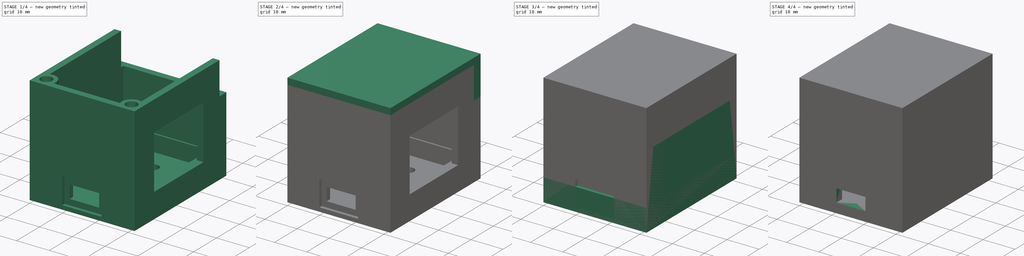
[diagram: build sequence overview — one tinted view per stage of 4, left to right]
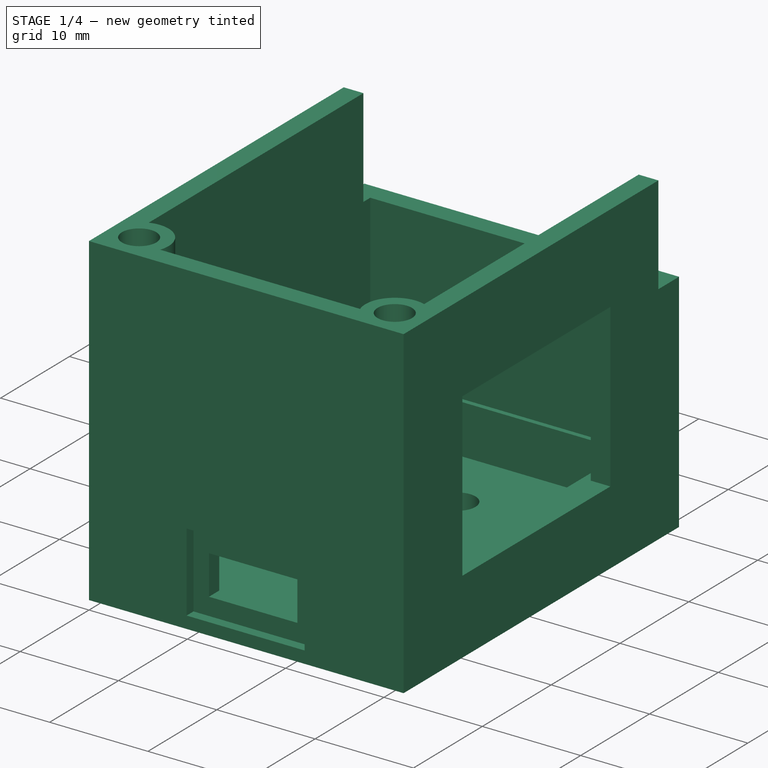
[diagram: stage 1 of 4 — iso view after this stage's code; geometry added in this stage tinted green]
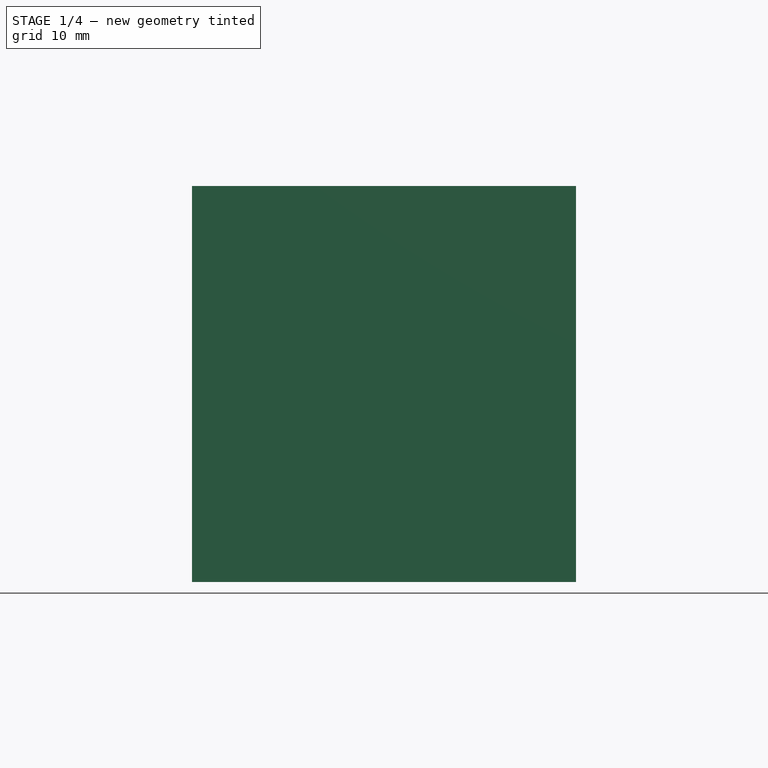
[diagram: stage 1 of 4 — front view after this stage's code; geometry added in this stage tinted green]
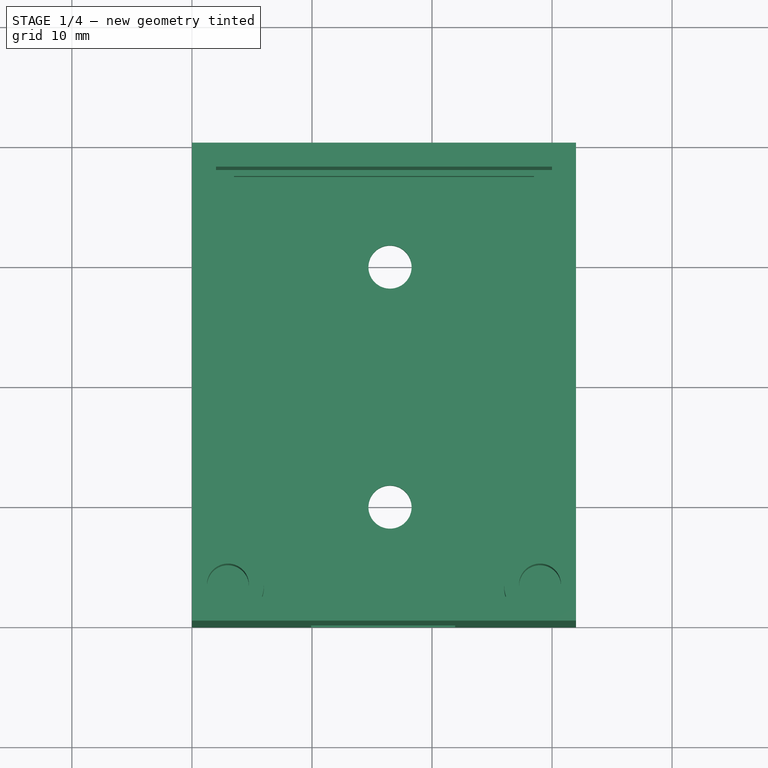
[diagram: stage 1 of 4 — top view after this stage's code; geometry added in this stage tinted green]
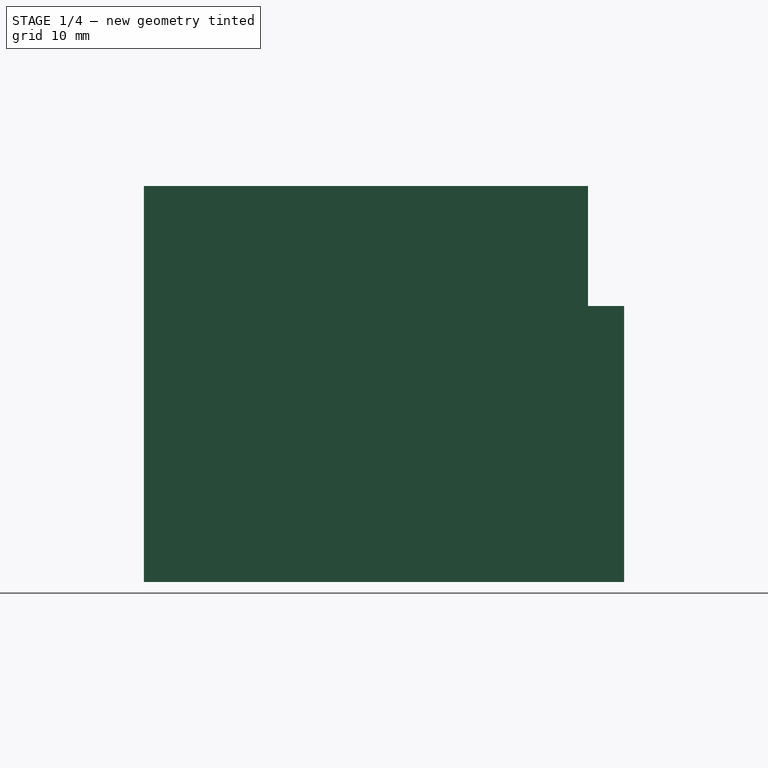
[diagram: stage 1 of 4 — right view after this stage's code; geometry added in this stage tinted green]
FCSTD DOCUMENT  (FreeCAD 0.16R6712 (Git))
Label: modulo_USB
License: All rights reserved
LicenseURL: http://en.wikipedia.org/wiki/All_rights_reserved
objects: Sketcher::SketchObject×12, PartDesign::Pocket×8, PartDesign::Pad×4, Part::Feature×3, Part::Box×1
note: 40 computed .brp shape members not serialized (recipe doc carries the construction recipe); baked Part::Feature solids carry a one-line shape summary decoded from their .brp

FEATURE [Part::Feature] Pad002001  label="Pad003"
  shape: bbox 32 x 40 x 33 mm, 32 faces (baked)
FEATURE [Sketcher::SketchObject] Sketch007
  ExternalGeometry = -> [Pad002001]
  Placement = pos=(0,0,33) rot=(0,0,1;0rad)
  Support = -> Pad002001 [Face31]
  sketch-geometry (2):
    g0: Circle CenterX=29 CenterY=3 CenterZ=0 NormalX=0 NormalY=0 NormalZ=1 Radius=1.75
    g1: Circle CenterX=3 CenterY=3 CenterZ=0 NormalX=0 NormalY=0 NormalZ=1 Radius=1.75
  constraints (4):
    c: Coincident(g0,g-4)
    c: Coincident(g1,g-3)
    c: Equal(g1,g0)
    c: Radius(g0) = 1.75
FEATURE [PartDesign::Pocket] Pocket001004
  Length = 8
  Sketch = -> Sketch007
  Type = 0
FEATURE [Sketcher::SketchObject] Sketch010
  ExternalGeometry = -> [Pocket001004]
  Placement = pos=(0,0,0) rot=(1,0,0;3.14159rad)
  Support = -> Pocket001004 [Face29]
  sketch-geometry (3):
    g0: LineSegment [constr] StartX=16.5 StartY=0 StartZ=0 EndX=16.5 EndY=-40 EndZ=0
    g1: Circle CenterX=16.5 CenterY=-10 CenterZ=0 NormalX=0 NormalY=0 NormalZ=1 Radius=1.8
    g2: Circle CenterX=16.5 CenterY=-30 CenterZ=0 NormalX=0 NormalY=0 NormalZ=1 Radius=1.8
  constraints (10):
    c: PointOnObject(g0,g-3)
    c: Vertical(g0)
    c: PointOnObject(g1,g0)
    c: PointOnObject(g2,g0)
    c: Radius(g2) = 1.8
    c: Equal(g2,g1)
    c: Distance(g1,g2) = 20
    c: Distance(g1,g0) = 10
    c: Distance(g0,g-3) = 15.5
    c: PointOnObject(g0,g-1)
FEATURE [PartDesign::Pocket] Pocket001006
  Length = 5
  Sketch = -> Sketch010
  Type = 0
FEATURE [Sketcher::SketchObject] Sketch011
  Placement = pos=(32,0,0) rot=(0.57735,0.57735,0.57735;2.0944rad)
  Support = -> Pocket001006 [Face32]
  sketch-geometry (4):
    g0: LineSegment StartX=8.52784 StartY=24.032 StartZ=0 EndX=30.0278 EndY=24.032 EndZ=0
    g1: LineSegment StartX=30.0278 StartY=24.032 StartZ=0 EndX=30.0278 EndY=7.53202 EndZ=0
    g2: LineSegment StartX=30.0278 StartY=7.53202 StartZ=0 EndX=8.52784 EndY=7.53202 EndZ=0
    g3: LineSegment StartX=8.52784 StartY=7.53202 StartZ=0 EndX=8.52784 EndY=24.032 EndZ=0
  constraints (10):
    c: Coincident(g0,g1)
    c: Coincident(g1,g2)
    c: Coincident(g2,g3)
    c: Coincident(g3,g0)
    c: Horizontal(g0)
    c: Horizontal(g2)
    c: Vertical(g1)
    c: Vertical(g3)
    c: DistanceX(g2,g2) = 21.5
    c: DistanceY(g3,g3) = 16.5
FEATURE [PartDesign::Pocket] Pocket001007
  Length = 5
  Sketch = -> Sketch011
  Type = 0
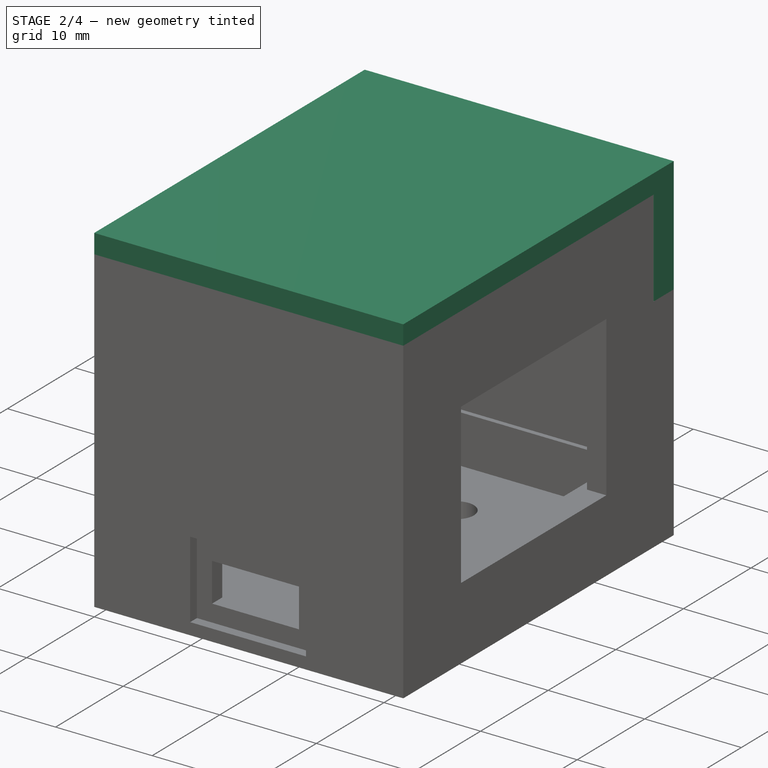
[diagram: stage 2 of 4 — iso view after this stage's code; geometry added in this stage tinted green]
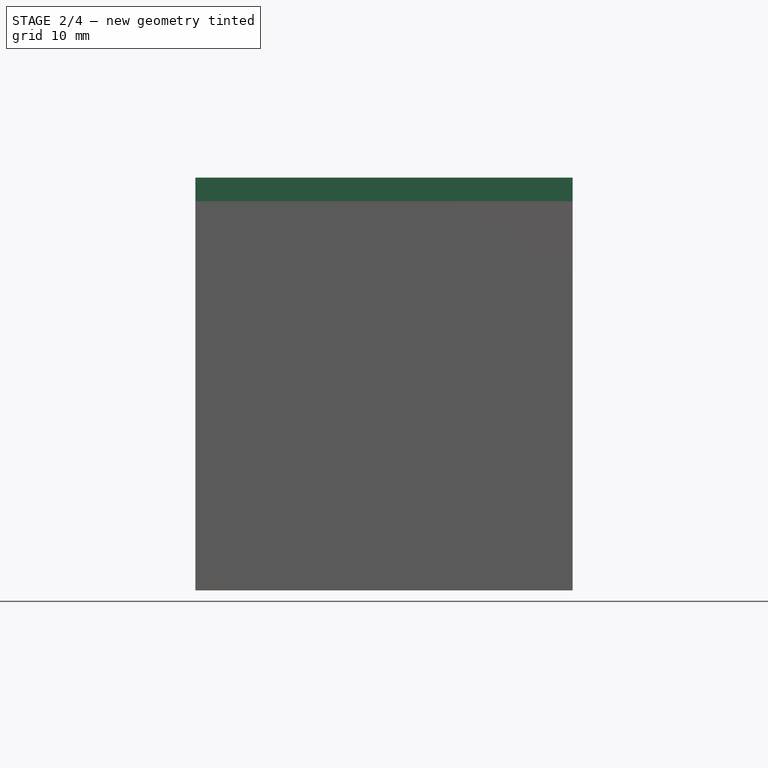
[diagram: stage 2 of 4 — front view after this stage's code; geometry added in this stage tinted green]
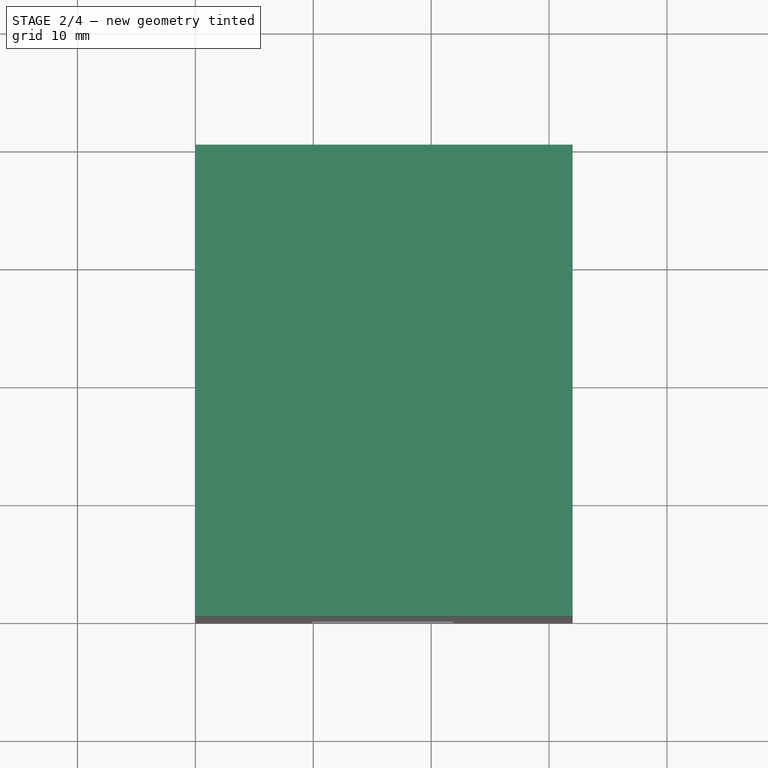
[diagram: stage 2 of 4 — top view after this stage's code; geometry added in this stage tinted green]
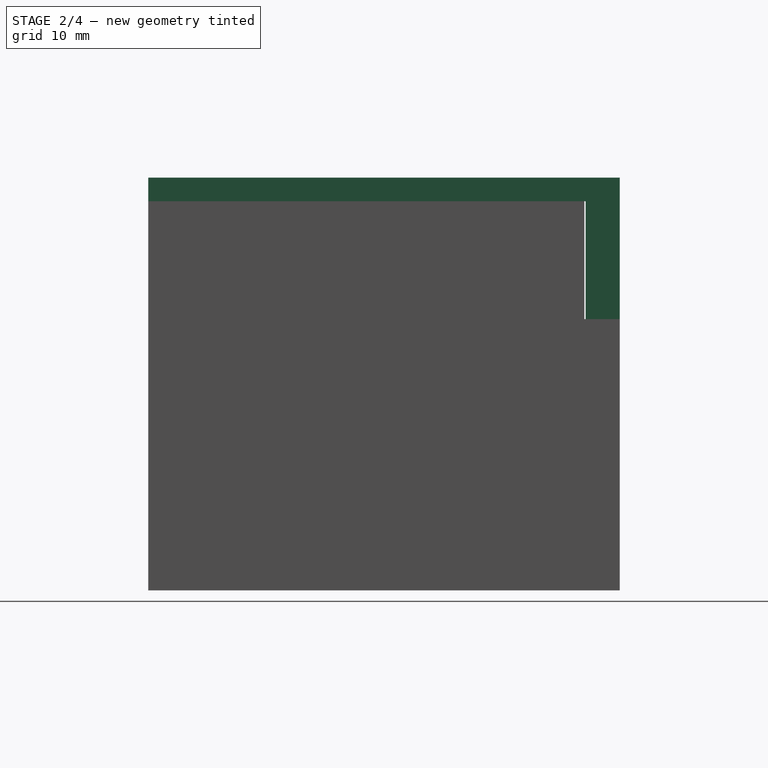
[diagram: stage 2 of 4 — right view after this stage's code; geometry added in this stage tinted green]
FEATURE [Part::Box] Box  label="Cubo"
  Height = 2
  Length = 32
  Placement = pos=(0,0,33) rot=(0,0,1;0rad)
  Width = 40
FEATURE [Sketcher::SketchObject] Sketch008
  ExternalGeometry = -> [Box]
  Placement = pos=(0,40,33) rot=(0,0.707107,0.707107;3.14159rad)
  Support = -> Box [Face4]
  sketch-geometry (8):
    g0: LineSegment StartX=-32 StartY=2 StartZ=0 EndX=-23.6734 EndY=2 EndZ=0
    g1: LineSegment StartX=-23.6734 StartY=2 StartZ=0 EndX=-23.6734 EndY=-10 EndZ=0
    g2: LineSegment StartX=-23.6734 StartY=-10 StartZ=0 EndX=-32 EndY=-10 EndZ=0
    g3: LineSegment StartX=-32 StartY=-10 StartZ=0 EndX=-32 EndY=2 EndZ=0
    g4: LineSegment StartX=0 StartY=2 StartZ=0 EndX=-7.67335 EndY=2 EndZ=0
    g5: LineSegment StartX=-7.67335 StartY=2 StartZ=0 EndX=-7.67335 EndY=-10 EndZ=0
    g6: LineSegment StartX=-7.67335 StartY=-10 StartZ=0 EndX=0 EndY=-10 EndZ=0
    g7: LineSegment StartX=0 StartY=-10 StartZ=0 EndX=0 EndY=2 EndZ=0
  constraints (21):
    c: Coincident(g0,g1)
    c: Coincident(g1,g2)
    c: Coincident(g2,g3)
    c: Coincident(g3,g0)
    c: Horizontal(g0)
    c: Horizontal(g2)
    c: Vertical(g1)
    c: Vertical(g3)
    c: Coincident(g4,g5)
    c: Coincident(g5,g6)
    c: Coincident(g6,g7)
    c: Coincident(g7,g4)
    c: Horizontal(g4)
    c: Horizontal(g6)
    c: Vertical(g5)
    c: Vertical(g7)
    c: Coincident(g4,g-3)
    c: Coincident(g0,g-3)
    c: Distance(g1,g5) = 16
    c: DistanceY(g3,g3) = 12
    c: Equal(g3,g7)
FEATURE [PartDesign::Pad] Pad002002
  Length = 2.9
  Length2 = 100
  Placement = pos=(0,0,33) rot=(0,0,1;0rad)
  Reversed = true
  Sketch = -> Sketch008
  Type = 0
FEATURE [Part::Feature] Pad002002001  label="Pad002003"
  shape: bbox 32 x 40 x 12 mm, 12 faces (baked)
FEATURE [Sketcher::SketchObject] Sketch009
  ExternalGeometry = -> [Pad002002001]
  Placement = pos=(0,0,35) rot=(0,0,1;0rad)
  Support = -> Pad002002001 [Face10]
  sketch-geometry (3):
    g0: Circle CenterX=29.064 CenterY=3.00447 CenterZ=0 NormalX=0 NormalY=0 NormalZ=1 Radius=1.7
    g1: Circle CenterX=2.93601 CenterY=3.00447 CenterZ=0 NormalX=0 NormalY=0 NormalZ=1 Radius=1.7
    g2: LineSegment [constr] StartX=0 StartY=3.00447 StartZ=0 EndX=30.764 EndY=3.00447 EndZ=0
  constraints (7):
    c: Equal(g1,g0)
    c: Radius(g0) = 1.7
    c: PointOnObject(g2,g-2)
    c: PointOnObject(g2,g0)
    c: Horizontal(g2)
    c: PointOnObject(g0,g2)
    c: PointOnObject(g1,g2)
FEATURE [PartDesign::Pocket] Pocket001005
  Length = 5
  Sketch = -> Sketch009
  Type = 0
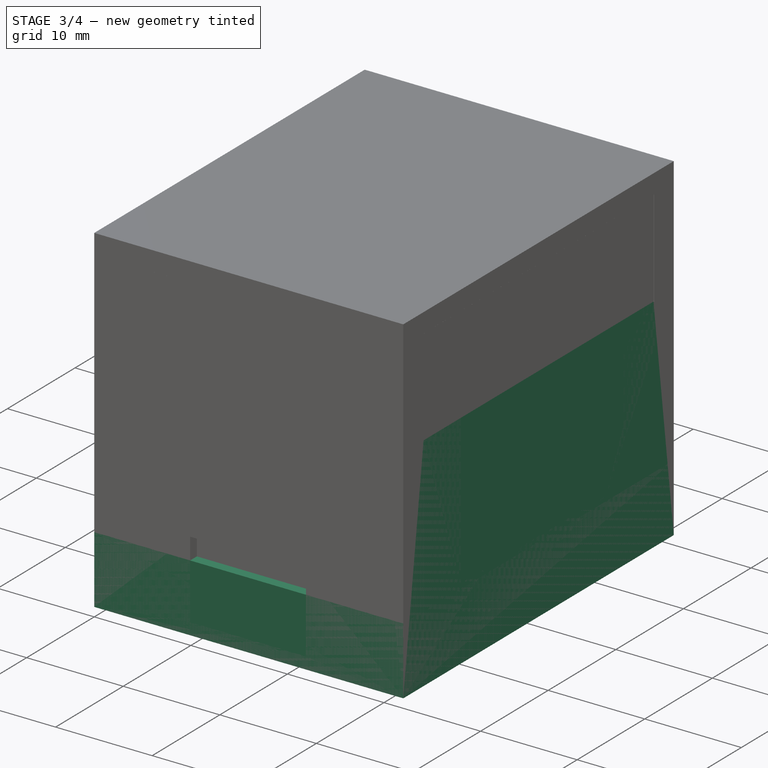
[diagram: stage 3 of 4 — iso view after this stage's code; geometry added in this stage tinted green]
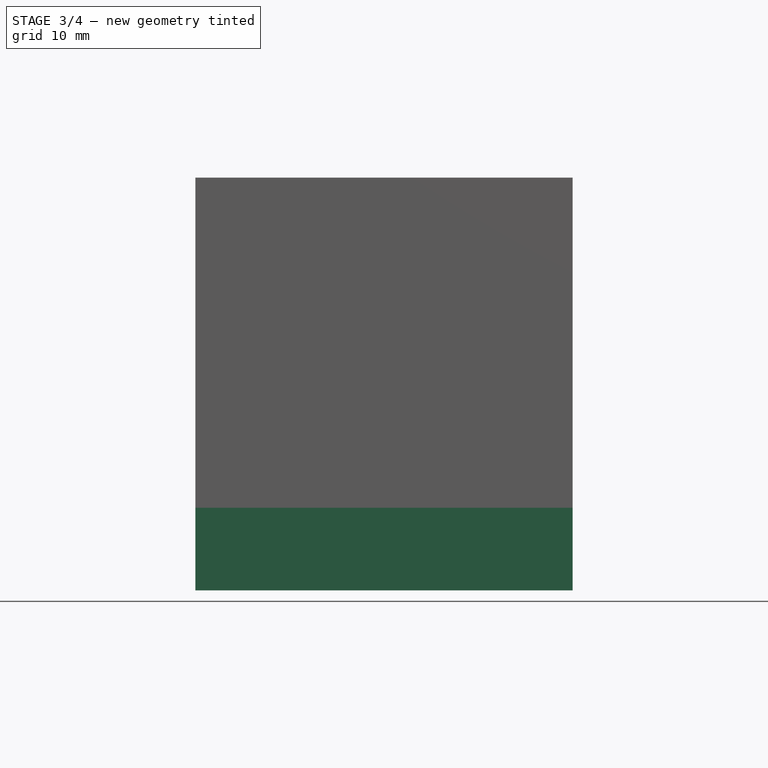
[diagram: stage 3 of 4 — front view after this stage's code; geometry added in this stage tinted green]
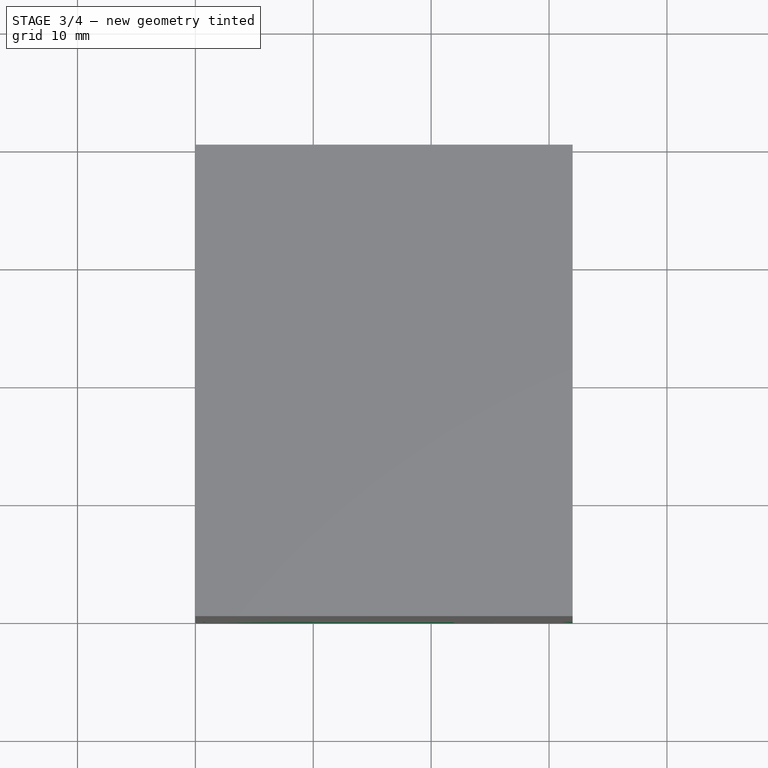
[diagram: stage 3 of 4 — top view after this stage's code; geometry added in this stage tinted green]
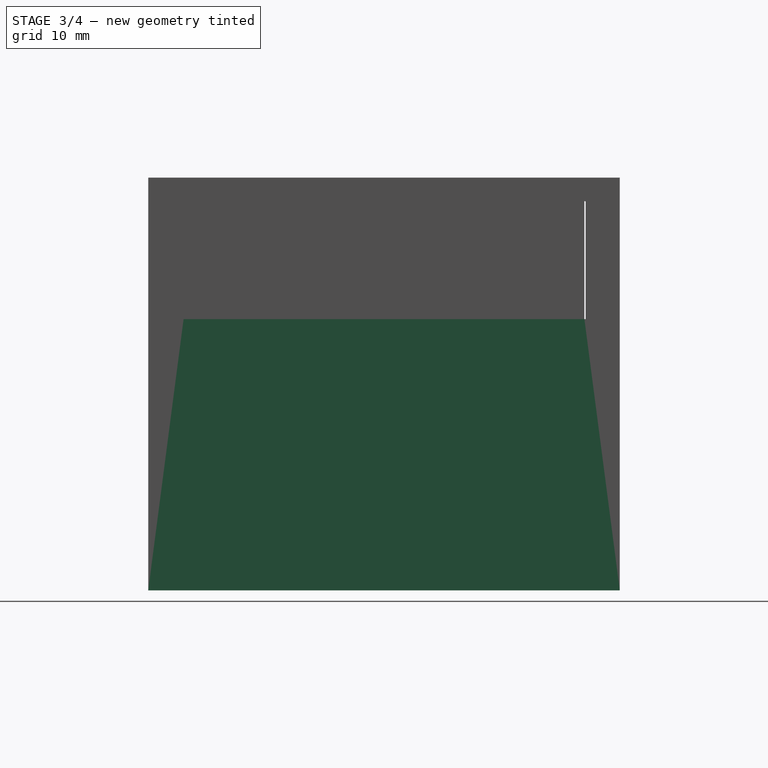
[diagram: stage 3 of 4 — right view after this stage's code; geometry added in this stage tinted green]
FEATURE [Sketcher::SketchObject] Sketch
  sketch-geometry (4):
    g0: LineSegment StartX=0 StartY=40 StartZ=0 EndX=32 EndY=40 EndZ=0
    g1: LineSegment StartX=32 StartY=40 StartZ=0 EndX=32 EndY=0 EndZ=0
    g2: LineSegment StartX=32 StartY=0 StartZ=0 EndX=0 EndY=0 EndZ=0
    g3: LineSegment StartX=0 StartY=0 StartZ=0 EndX=0 EndY=40 EndZ=0
  constraints (11):
    c: Coincident(g0,g1)
    c: Coincident(g1,g2)
    c: Coincident(g2,g3)
    c: Coincident(g3,g0)
    c: Horizontal(g0)
    c: Horizontal(g2)
    c: Vertical(g1)
    c: Vertical(g3)
    c: DistanceX(g0,g0) = 32
    c: DistanceY(g1,g1) = 40
    c: Coincident(g2,g-1)
FEATURE [PartDesign::Pad] Pad
  Length = 7
  Length2 = 100
  Sketch = -> Sketch
  Type = 0
FEATURE [Part::Feature] Pocket001001  label="USB001"
  shape: bbox 32 x 40 x 33 mm, 20 faces (baked)
FEATURE [Sketcher::SketchObject] Sketch004
  Placement = pos=(0,0,0) rot=(1,0,0;1.5708rad)
  Support = -> Pocket001001 [Face18]
  sketch-geometry (4):
    g0: LineSegment StartX=9.9293 StartY=9.22955 StartZ=0 EndX=21.9293 EndY=9.22955 EndZ=0
    g1: LineSegment StartX=21.9293 StartY=9.22955 StartZ=0 EndX=21.9293 EndY=1.22955 EndZ=0
    g2: LineSegment StartX=21.9293 StartY=1.22955 StartZ=0 EndX=9.9293 EndY=1.22955 EndZ=0
    g3: LineSegment StartX=9.9293 StartY=1.22955 StartZ=0 EndX=9.9293 EndY=9.22955 EndZ=0
  constraints (10):
    c: Coincident(g0,g1)
    c: Coincident(g1,g2)
    c: Coincident(g2,g3)
    c: Coincident(g3,g0)
    c: Horizontal(g0)
    c: Horizontal(g2)
    c: Vertical(g1)
    c: Vertical(g3)
    c: DistanceX(g0,g0) = 12
    c: DistanceY(g1,g1) = 8
FEATURE [PartDesign::Pocket] Pocket001002
  Length = 1
  Sketch = -> Sketch004
  Type = 0
FEATURE [Sketcher::SketchObject] Sketch005
  ExternalGeometry = -> [Pocket001002]
  Placement = pos=(32,0,0) rot=(0.57735,0.57735,0.57735;2.0944rad)
  Support = -> Pocket001002 [Face23]
  sketch-geometry (4):
    g0: LineSegment StartX=37 StartY=33 StartZ=0 EndX=40 EndY=33 EndZ=0
    g1: LineSegment StartX=40 StartY=33 StartZ=0 EndX=40 EndY=23 EndZ=0
    g2: LineSegment StartX=40 StartY=23 StartZ=0 EndX=37 EndY=23 EndZ=0
    g3: LineSegment StartX=37 StartY=23 StartZ=0 EndX=37 EndY=33 EndZ=0
  constraints (12):
    c: Coincident(g0,g1)
    c: Coincident(g1,g2)
    c: Coincident(g2,g3)
    c: Coincident(g3,g0)
    c: Horizontal(g0)
    c: Horizontal(g2)
    c: Vertical(g1)
    c: Vertical(g3)
    c: PointOnObject(g1,g-4)
    c: PointOnObject(g0,g-3)
    c: DistanceY(g3,g3) = 10
    c: DistanceX(g2,g2) = 3
FEATURE [PartDesign::Pocket] Pocket001003
  Length = 5
  Sketch = -> Sketch005
  Type = 1
FEATURE [Sketcher::SketchObject] Sketch006
  ExternalGeometry = -> [Pocket001003]
  Placement = pos=(0,0,33) rot=(0,0,1;0rad)
  Support = -> Pocket001003 [Face21]
  sketch-geometry (2):
    g0: Circle CenterX=29 CenterY=3 CenterZ=0 NormalX=0 NormalY=0 NormalZ=1 Radius=3
    g1: Circle CenterX=3 CenterY=3 CenterZ=0 NormalX=0 NormalY=0 NormalZ=1 Radius=3
  constraints (6):
    c: Equal(g1,g0)
    c: Radius(g1) = 3
    c: Tangent(g0,g-3)
    c: Tangent(g0,g-1)
    c: Tangent(g1,g-2)
    c: Tangent(g1,g-1)
FEATURE [PartDesign::Pad] Pad002
  Length = 10
  Length2 = 100
  Reversed = true
  Sketch = -> Sketch006
  Type = 0
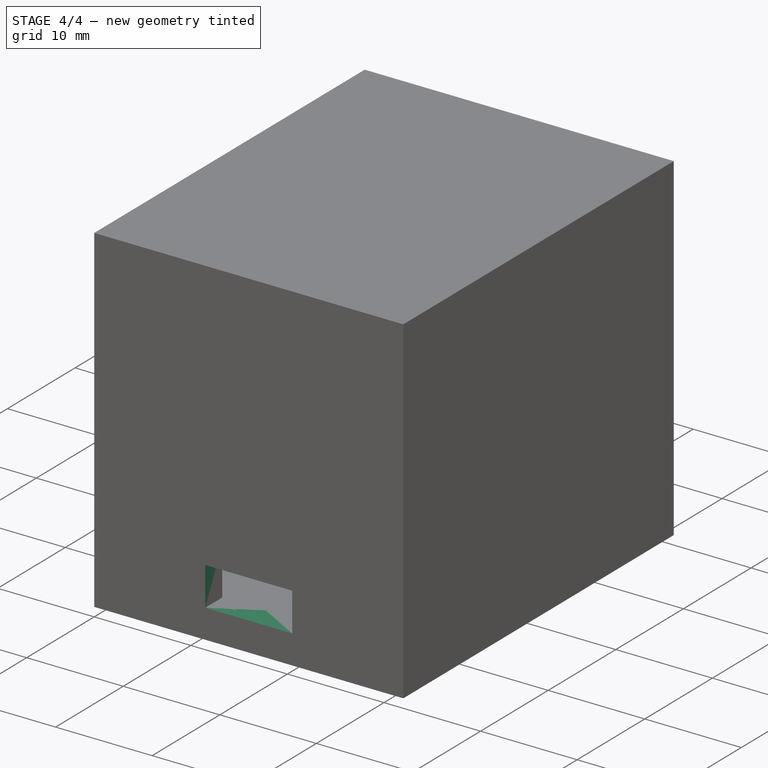
[diagram: stage 4 of 4 — iso view after this stage's code; geometry added in this stage tinted green]
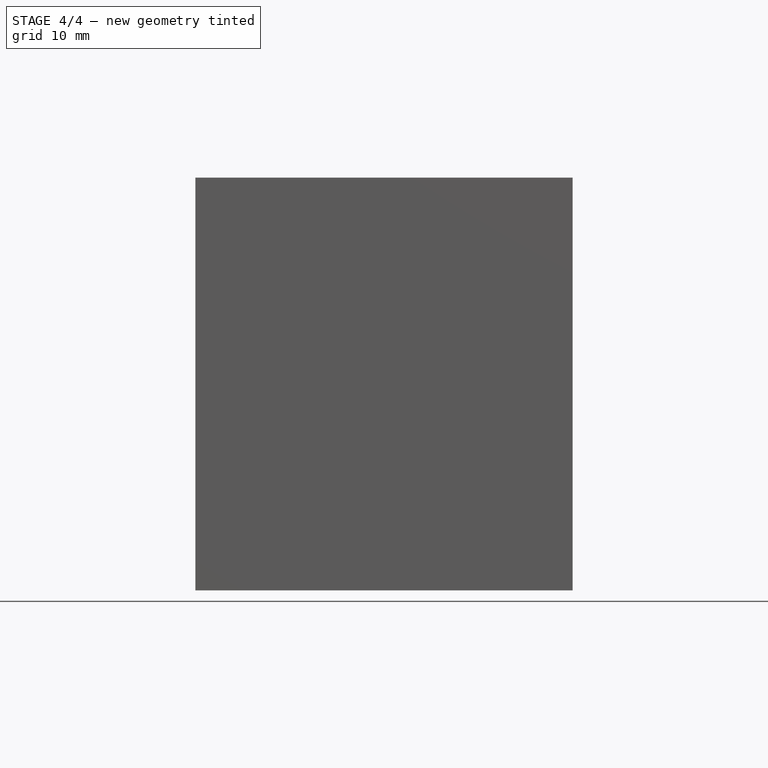
[diagram: stage 4 of 4 — front view after this stage's code; geometry added in this stage tinted green]
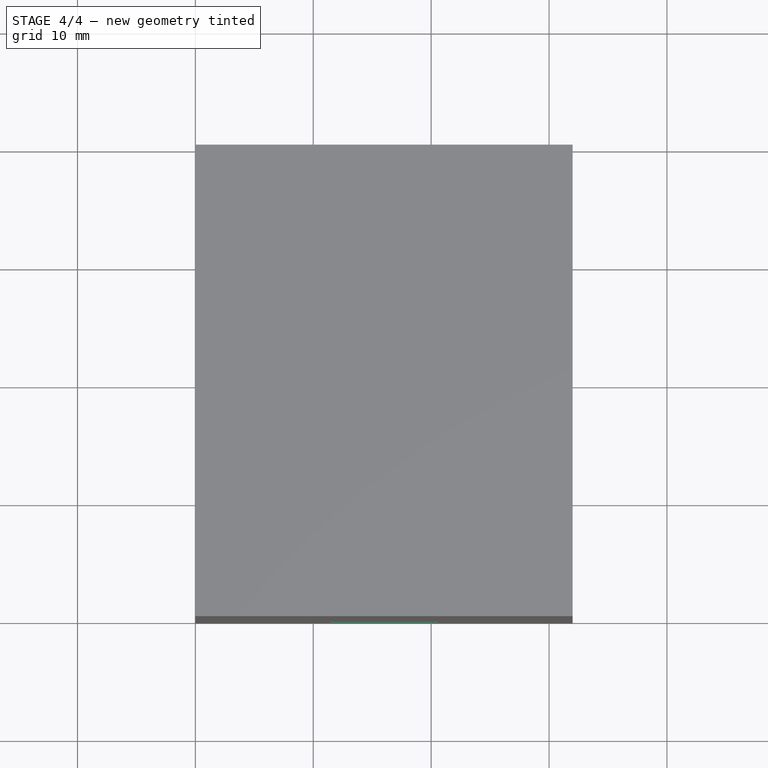
[diagram: stage 4 of 4 — top view after this stage's code; geometry added in this stage tinted green]
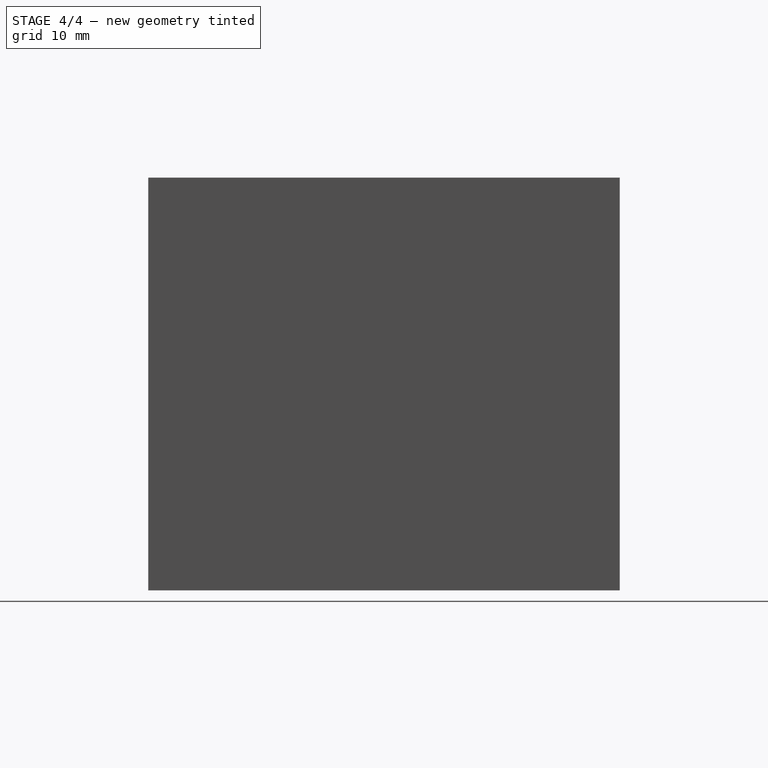
[diagram: stage 4 of 4 — right view after this stage's code; geometry added in this stage tinted green]
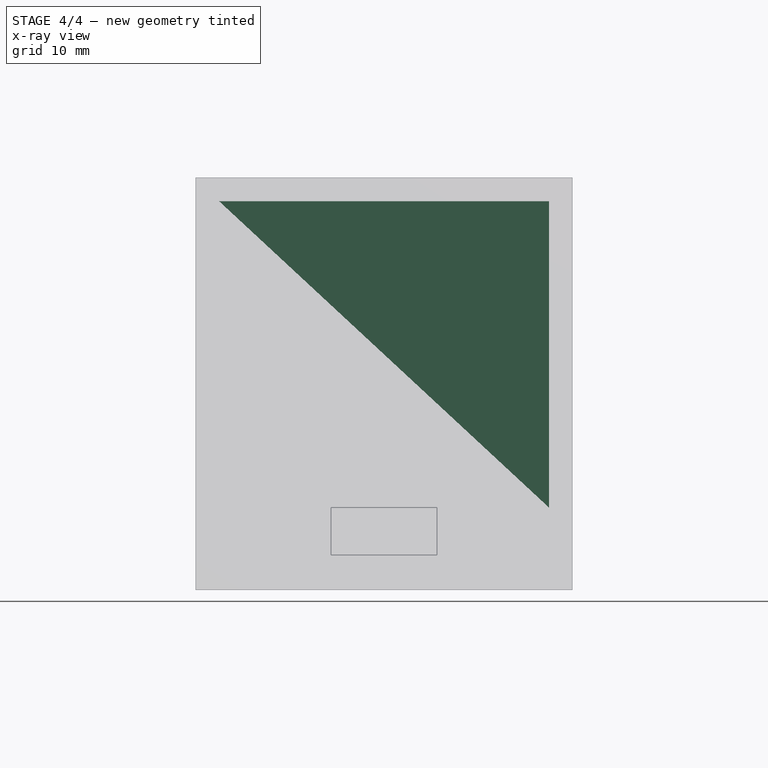
[diagram: stage 4 of 4 — x-ray composite at the front view; earlier geometry ghosted, this stage's added geometry solid]
FEATURE [Sketcher::SketchObject] Sketch001
  ExternalGeometry = -> [Pad]
  Placement = pos=(0,0,7) rot=(0,0,1;0rad)
  Support = -> Pad [Face6]
  sketch-geometry (8):
    g0: LineSegment StartX=0 StartY=40 StartZ=0 EndX=32 EndY=40 EndZ=0
    g1: LineSegment StartX=32 StartY=40 StartZ=0 EndX=32 EndY=0 EndZ=0
    g2: LineSegment StartX=32 StartY=0 StartZ=0 EndX=0 EndY=0 EndZ=0
    g3: LineSegment StartX=0 StartY=0 StartZ=0 EndX=0 EndY=40 EndZ=0
    g4: LineSegment StartX=2 StartY=38 StartZ=0 EndX=30 EndY=38 EndZ=0
    g5: LineSegment StartX=30 StartY=38 StartZ=0 EndX=30 EndY=2 EndZ=0
    g6: LineSegment StartX=30 StartY=2 StartZ=0 EndX=2 EndY=2 EndZ=0
    g7: LineSegment StartX=2 StartY=2 StartZ=0 EndX=2 EndY=38 EndZ=0
  constraints (23):
    c: Coincident(g0,g1)
    c: Coincident(g1,g2)
    c: Coincident(g2,g3)
    c: Coincident(g3,g0)
    c: Horizontal(g0)
    c: Horizontal(g2)
    c: Vertical(g1)
    c: Vertical(g3)
    c: Coincident(g0,g-3)
    c: Coincident(g0,g-4)
    c: Coincident(g1,g-4)
    c: Coincident(g4,g5)
    c: Coincident(g5,g6)
    c: Coincident(g6,g7)
    c: Coincident(g7,g4)
    c: Horizontal(g4)
    c: Horizontal(g6)
    c: Vertical(g5)
    c: Vertical(g7)
    c: Distance(g6,g3) = 2
    c: Distance(g5,g2) = 2
    c: Distance(g4,g-4) = 2
    c: Distance(g4,g-3) = 2
FEATURE [PartDesign::Pad] Pad001
  Length = 26
  Length2 = 100
  Sketch = -> Sketch001
  Type = 0
FEATURE [Sketcher::SketchObject] Sketch002
  ExternalGeometry = -> [Pad001]
  Placement = pos=(0,0,7) rot=(0,0,1;0rad)
  Support = -> Pad001 [Face15]
  sketch-geometry (5):
    g0: LineSegment StartX=3.5 StartY=37.5 StartZ=0 EndX=28.5 EndY=37.5 EndZ=0
    g1: LineSegment StartX=28.5 StartY=37.5 StartZ=0 EndX=28.5 EndY=2.5 EndZ=0
    g2: LineSegment StartX=3.5 StartY=2.5 StartZ=0 EndX=3.5 EndY=37.5 EndZ=0
    g3: LineSegment StartX=3.5 StartY=2.5 StartZ=0 EndX=16 EndY=2.5 EndZ=0
    g4: LineSegment StartX=16 StartY=2.5 StartZ=0 EndX=28.5 EndY=2.5 EndZ=0
  constraints (15):
    c: Coincident(g0,g1)
    c: Coincident(g2,g0)
    c: Horizontal(g0)
    c: Vertical(g1)
    c: Vertical(g2)
    c: Horizontal(g3)
    c: Horizontal(g4)
    c: Coincident(g4,g1)
    c: Coincident(g3,g2)
    c: DistanceX(g0,g0) = 25
    c: Equal(g3,g4)
    c: DistanceY(g1,g1) = 35
    c: Coincident(g4,g3)
    c: Distance(g0,g-4) = 1.5
    c: Distance(g1,g-5) = 0.5
FEATURE [PartDesign::Pocket] Pocket  label="soldaduras"
  Length = 5
  Sketch = -> Sketch002
  Type = 0
FEATURE [Sketcher::SketchObject] Sketch003
  ExternalGeometry = -> [Pocket]
  Placement = pos=(0,0,0) rot=(1,0,0;1.5708rad)
  Support = -> Pocket [Face4]
  sketch-geometry (6):
    g0: LineSegment StartX=11.5 StartY=7 StartZ=0 EndX=20.5 EndY=7 EndZ=0
    g1: LineSegment StartX=20.5 StartY=7 StartZ=0 EndX=20.5 EndY=3 EndZ=0
    g2: LineSegment StartX=20.5 StartY=3 StartZ=0 EndX=11.5 EndY=3 EndZ=0
    g3: LineSegment StartX=11.5 StartY=3 StartZ=0 EndX=11.5 EndY=7 EndZ=0
    g4: LineSegment [constr] StartX=0 StartY=7 StartZ=0 EndX=11.5 EndY=7 EndZ=0
    g5: LineSegment [constr] StartX=20.5 StartY=7 StartZ=0 EndX=32 EndY=7 EndZ=0
  constraints (18):
    c: Coincident(g0,g1)
    c: Coincident(g1,g2)
    c: Coincident(g2,g3)
    c: Coincident(g3,g0)
    c: Horizontal(g0)
    c: Horizontal(g2)
    c: Vertical(g1)
    c: Vertical(g3)
    c: DistanceX(g2,g2) = 9
    c: DistanceY(g3,g3) = 4
    c: PointOnObject(g0,g-3)
    c: Horizontal(g4)
    c: Horizontal(g5)
    c: Equal(g5,g4)
    c: Coincident(g5,g-3)
    c: Coincident(g4,g-3)
    c: Coincident(g4,g0)
    c: Coincident(g5,g0)
FEATURE [PartDesign::Pocket] Pocket001  label="USB"
  Length = 5
  Sketch = -> Sketch003
  Type = 0
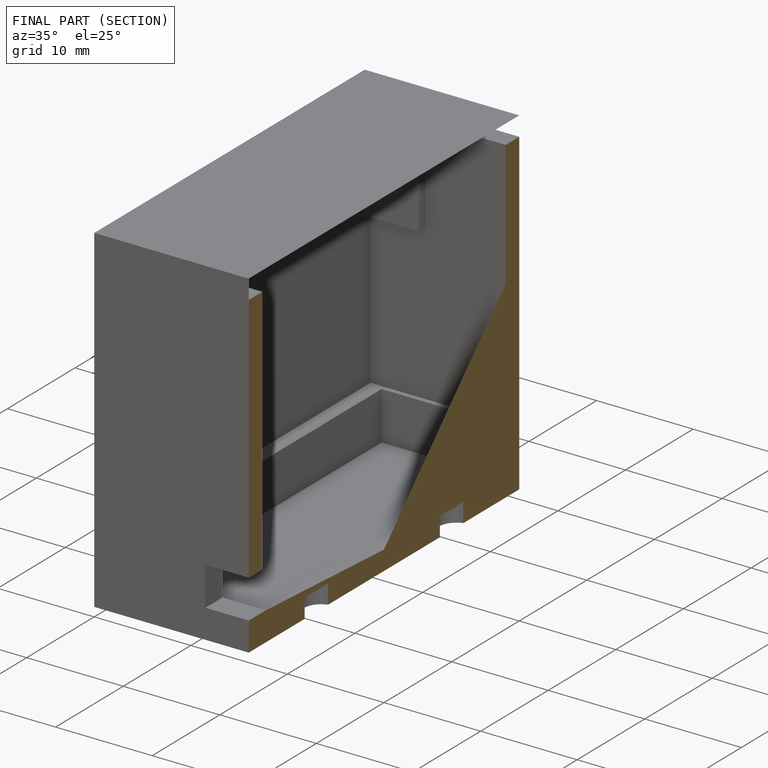
[diagram: finished part — half-section view (interior)]
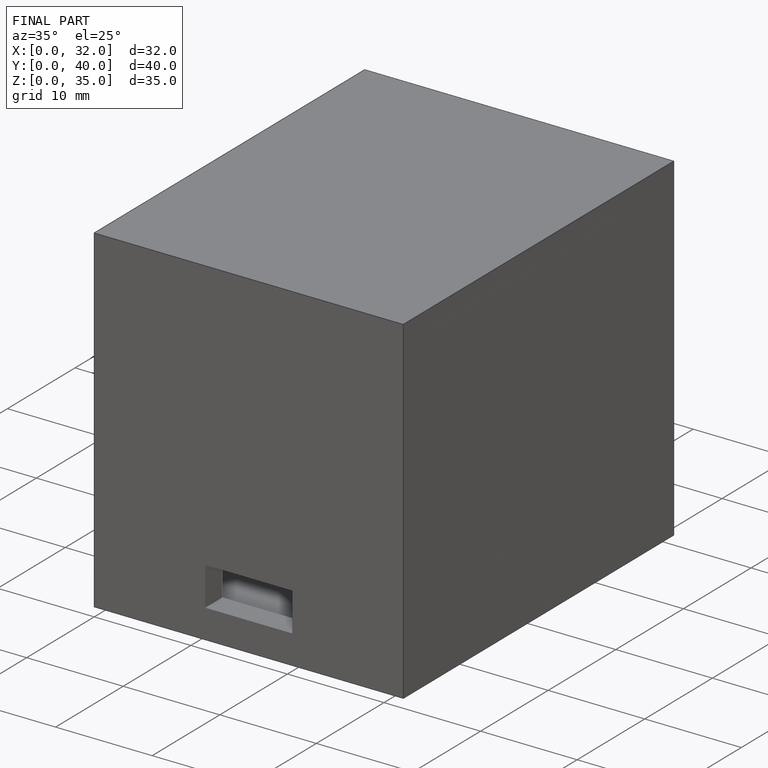
[diagram: finished part — iso view with bounding-box wireframe]
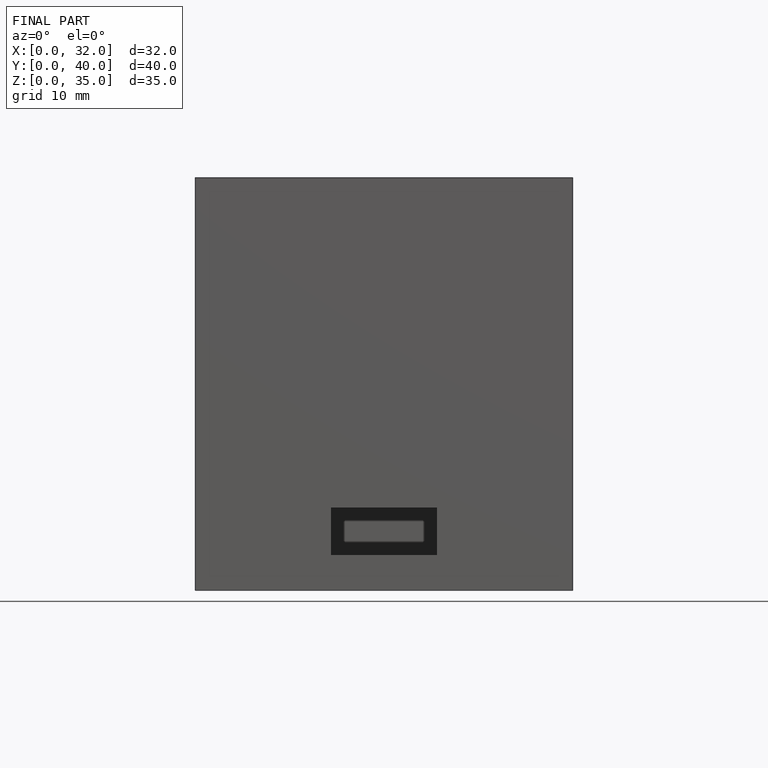
[diagram: finished part — front view with bounding-box wireframe]
